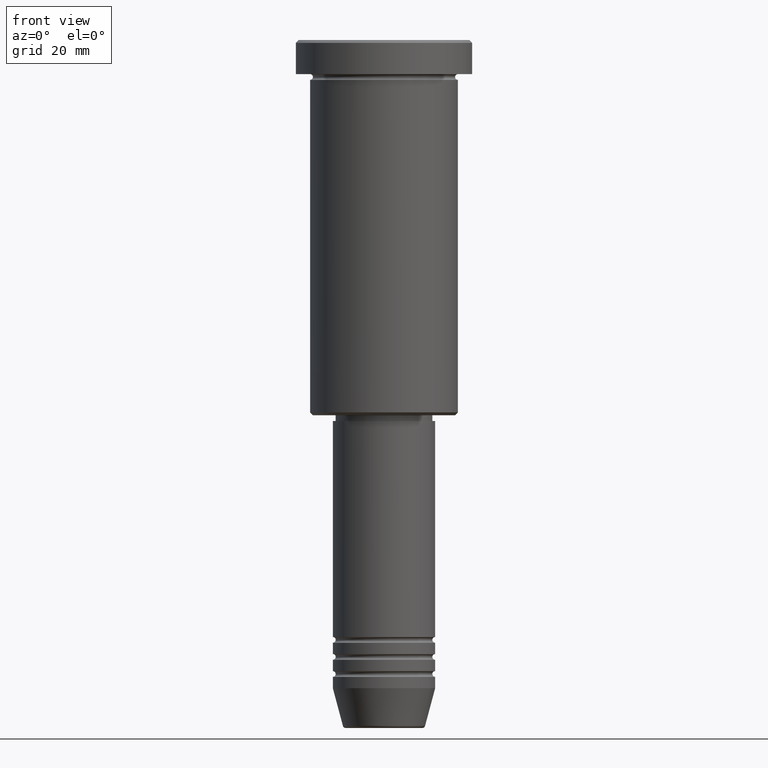
[diagram: clean part render]
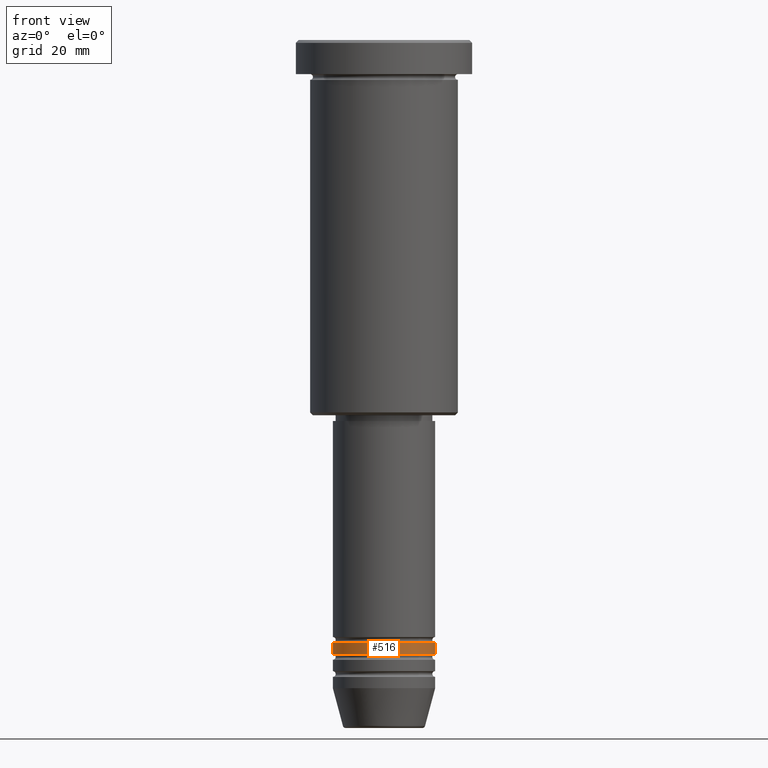
[diagram: same view with one face highlighted and labeled with its STEP entity id]
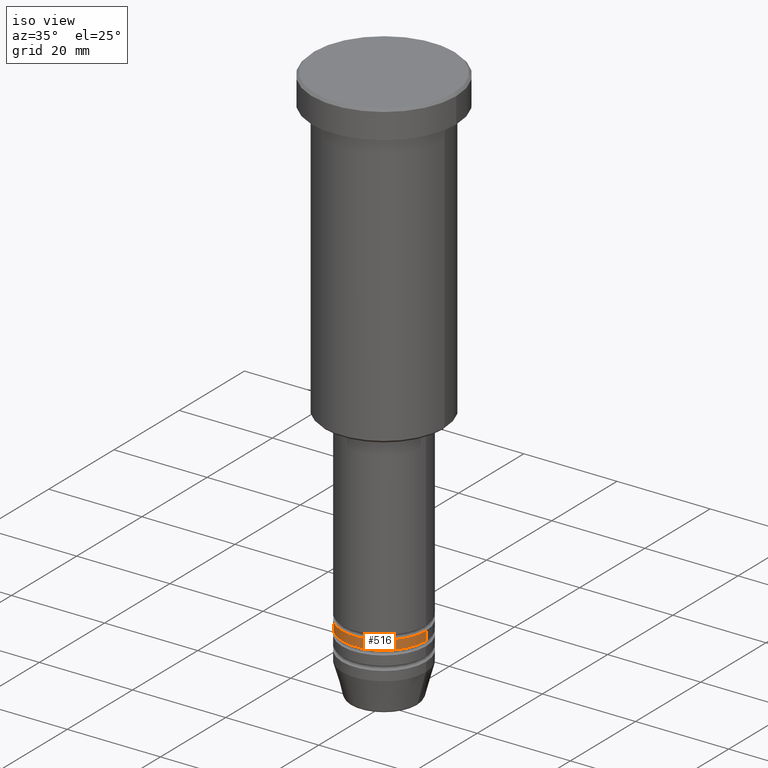
[diagram: same view with one face highlighted and labeled with its STEP entity id]
A machine part, front view. The second image highlights one B-rep face of the part: STEP entity #516.
A second angle (iso view) of the same face is appended — the face is thin or edge-on in the first view.
In plain terms, the highlighted cylindrical surface (partial cylindrical patch) has radius 9 mm, axis along (-0, -0, 1).
Its self-contained STEP definition (entity closure, byte-faithful):
#8 = CYLINDRICAL_SURFACE ( 'NONE', #390, 9.000000000000000000 ) ;
#45 = DIRECTION ( 'NONE',  ( -0.000000000000000000, -0.000000000000000000, 1.000000000000000000 ) ) ;
#99 = DIRECTION ( 'NONE',  ( 1.000000000000000000, 0.000000000000000000, 0.000000000000000000 ) ) ;
#122 = DIRECTION ( 'NONE',  ( -0.000000000000000000, -0.000000000000000000, 1.000000000000000000 ) ) ;
#136 = EDGE_CURVE ( 'NONE', #959, #286, #738, .T. ) ;
#143 = AXIS2_PLACEMENT_3D ( 'NONE', #452, #45, #145 ) ;
#145 = DIRECTION ( 'NONE',  ( 1.000000000000000000, 0.000000000000000000, 0.000000000000000000 ) ) ;
#193 = DIRECTION ( 'NONE',  ( -0.000000000000000000, -0.000000000000000000, 1.000000000000000000 ) ) ;
#267 = CARTESIAN_POINT ( 'NONE',  ( 0.000000000000000000, 0.000000000000000000, 0.000000000000000000 ) ) ;
#286 = VERTEX_POINT ( 'NONE', #1049 ) ;
#301 = VECTOR ( 'NONE', #122, 1000.000000000000000 ) ;
#390 = AXIS2_PLACEMENT_3D ( 'NONE', #267, #193, #99 ) ;
#408 = ORIENTED_EDGE ( 'NONE', *, *, #545, .T. ) ;
#431 = EDGE_CURVE ( 'NONE', #736, #1096, #882, .T. ) ;
#452 = CARTESIAN_POINT ( 'NONE',  ( 0.000000000000000000, 0.000000000000000000, -106.0000000000000000 ) ) ;
#516 = ADVANCED_FACE ( 'NONE', ( #547 ), #8, .T. ) ;
#527 = DIRECTION ( 'NONE',  ( -0.000000000000000000, -0.000000000000000000, 1.000000000000000000 ) ) ;
#545 = EDGE_CURVE ( 'NONE', #959, #736, #1172, .T. ) ;
#547 = FACE_OUTER_BOUND ( 'NONE', #773, .T. ) ;
#594 = ORIENTED_EDGE ( 'NONE', *, *, #136, .F. ) ;
#624 = CARTESIAN_POINT ( 'NONE',  ( 9.000000000000000000, 0.000000000000000000, 0.000000000000000000 ) ) ;
#625 = AXIS2_PLACEMENT_3D ( 'NONE', #913, #721, #1092 ) ;
#653 = CARTESIAN_POINT ( 'NONE',  ( 9.000000000000000000, 0.000000000000000000, -106.0000000000000000 ) ) ;
#659 = CIRCLE ( 'NONE', #143, 9.000000000000000000 ) ;
#670 = CARTESIAN_POINT ( 'NONE',  ( -9.000000000000000000, 1.102182119232617714E-15, 0.000000000000000000 ) ) ;
#677 = ORIENTED_EDGE ( 'NONE', *, *, #789, .F. ) ;
#721 = DIRECTION ( 'NONE',  ( -0.000000000000000000, -0.000000000000000000, 1.000000000000000000 ) ) ;
#736 = VERTEX_POINT ( 'NONE', #840 ) ;
#738 = LINE ( 'NONE', #670, #301 ) ;
#773 = EDGE_LOOP ( 'NONE', ( #594, #408, #947, #677 ) ) ;
#789 = EDGE_CURVE ( 'NONE', #286, #1096, #659, .T. ) ;
#840 = CARTESIAN_POINT ( 'NONE',  ( 9.000000000000000000, 0.000000000000000000, -107.9999999999999858 ) ) ;
#882 = LINE ( 'NONE', #624, #981 ) ;
#913 = CARTESIAN_POINT ( 'NONE',  ( 0.000000000000000000, 0.000000000000000000, -107.9999999999999858 ) ) ;
#947 = ORIENTED_EDGE ( 'NONE', *, *, #431, .T. ) ;
#959 = VERTEX_POINT ( 'NONE', #1085 ) ;
#981 = VECTOR ( 'NONE', #527, 1000.000000000000000 ) ;
#1049 = CARTESIAN_POINT ( 'NONE',  ( -9.000000000000000000, 1.102182119232617714E-15, -106.0000000000000000 ) ) ;
#1085 = CARTESIAN_POINT ( 'NONE',  ( -9.000000000000000000, 1.102182119232617714E-15, -107.9999999999999858 ) ) ;
#1092 = DIRECTION ( 'NONE',  ( 1.000000000000000000, 0.000000000000000000, 0.000000000000000000 ) ) ;
#1096 = VERTEX_POINT ( 'NONE', #653 ) ;
#1172 = CIRCLE ( 'NONE', #625, 9.000000000000000000 ) ;